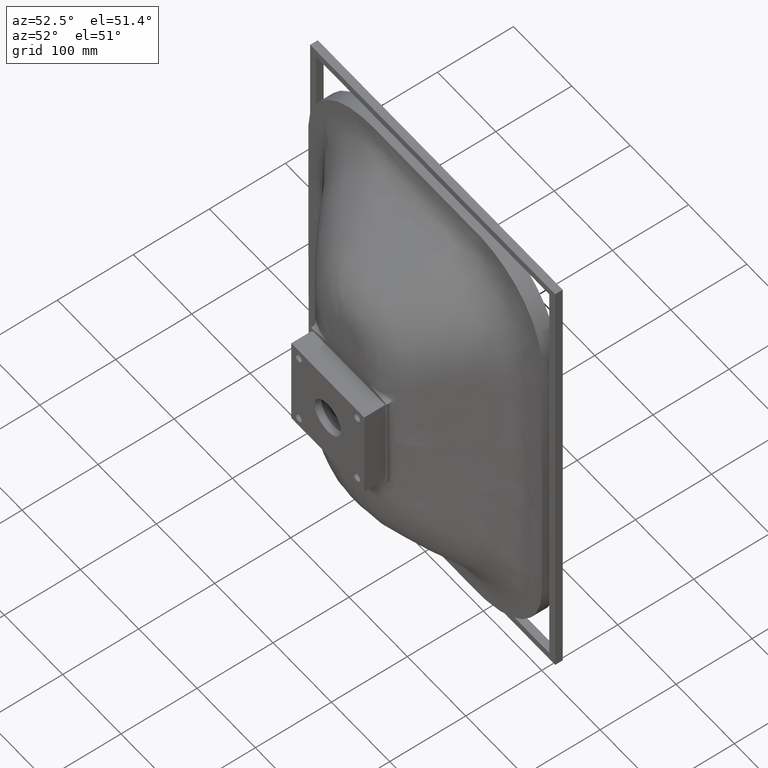
[diagram: clean part render]
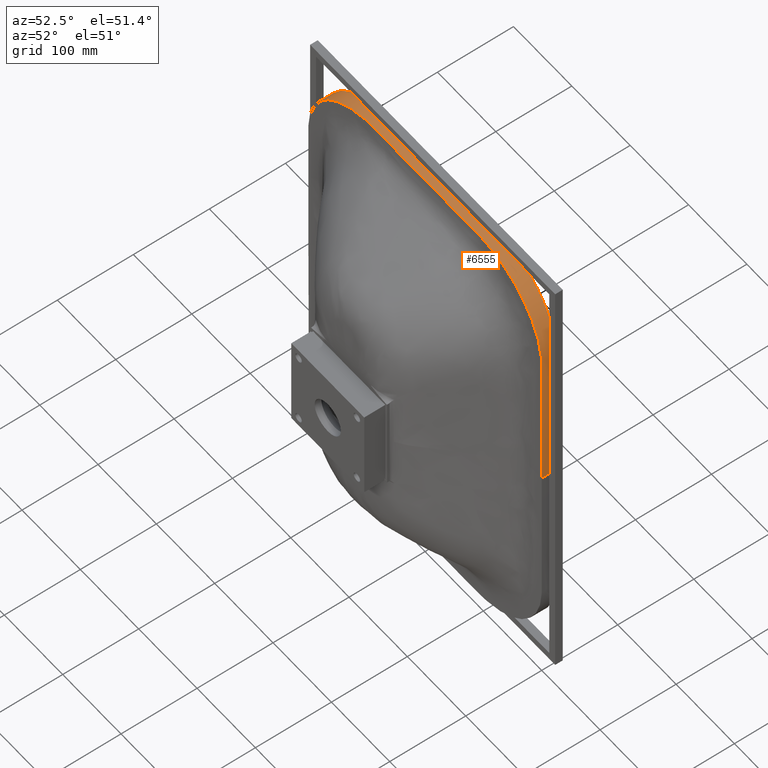
[diagram: same view with one face highlighted and labeled with its STEP entity id]
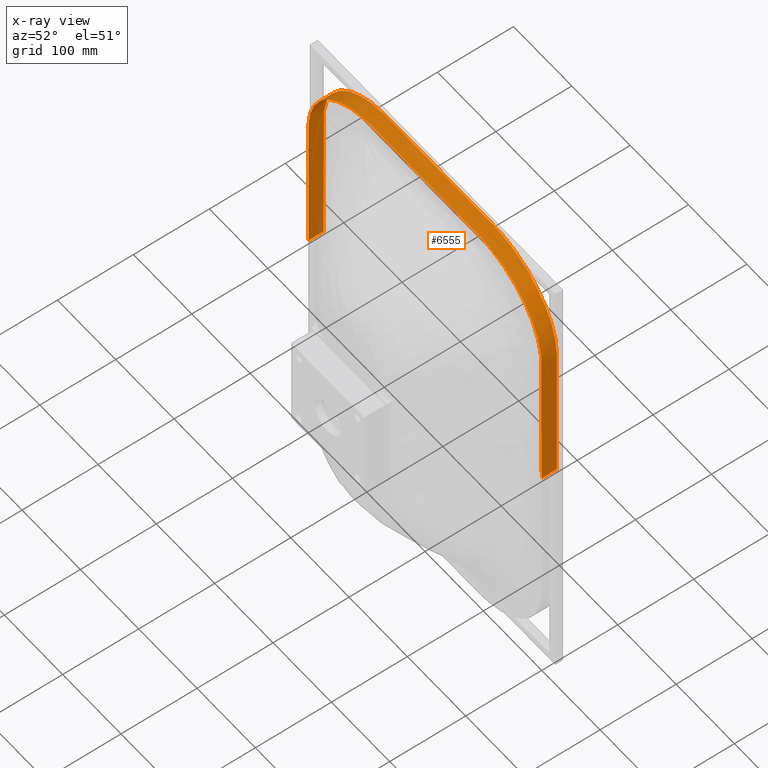
[diagram: x-ray of the same camera — body ghosted, the highlighted face saturated]
A machine part, auxiliary view. The second image highlights one B-rep face of the part: STEP entity #6555.
The next image is the same camera in x-ray: the body ghosted, the highlighted face saturated — about 2% of this face is hidden behind the body in this view.
In plain terms, the highlighted face is a freeform B-spline surface patch.
Its self-contained STEP definition (entity closure, byte-faithful):
#387 = CARTESIAN_POINT ( 'NONE',  ( 200.0000000000021300, 120.0000000000007400, 9.159339953157541500E-013 ) ) ;
#409 = CARTESIAN_POINT ( 'NONE',  ( 200.0000000000021900, 120.0000000000016300, 63.33333333333298000 ) ) ;
#423 = CARTESIAN_POINT ( 'NONE',  ( 200.0000000000015300, 120.0000000000022700, 126.6666666666670700 ) ) ;
#426 = CARTESIAN_POINT ( 'NONE',  ( 199.9999999999999700, 119.9999999999996600, 199.3423852784301000 ) ) ;
#442 = CARTESIAN_POINT ( 'NONE',  ( 198.8080864718468200, 119.9999999999999700, 208.5657858098214800 ) ) ;
#447 = CARTESIAN_POINT ( 'NONE',  ( 194.0399032443970100, 120.0000000000000300, 227.0779828008003000 ) ) ;
#465 = CARTESIAN_POINT ( 'NONE',  ( 186.6589759895216500, 120.0000000000000300, 245.1906514458040400 ) ) ;
#484 = CARTESIAN_POINT ( 'NONE',  ( 168.6923294650225400, 119.9999999999999600, 268.6923294650225700 ) ) ;
#488 = CARTESIAN_POINT ( 'NONE',  ( 147.3414267532379800, 120.0000000000000300, 285.0147497671384800 ) ) ;
#506 = CARTESIAN_POINT ( 'NONE',  ( 121.1660790566502900, 120.0000000000000300, 296.8106721460861200 ) ) ;
#524 = CARTESIAN_POINT ( 'NONE',  ( 102.0471619301131200, 120.0000000000000000, 300.0000000000000600 ) ) ;
#541 = CARTESIAN_POINT ( 'NONE',  ( 83.49218113899503600, 120.0000000000000000, 299.9999999999999400 ) ) ;
#545 = CARTESIAN_POINT ( 'NONE',  ( 76.98436227798986000, 120.0000000000000100, 300.0000000000000600 ) ) ;
#566 = CARTESIAN_POINT ( 'NONE',  ( 65.93767346658977100, 120.0000000000000300, 300.0000000000000600 ) ) ;
#586 = CARTESIAN_POINT ( 'NONE',  ( 59.12631834090001300, 119.9999999999999900, 300.0000000000000600 ) ) ;
#612 = CARTESIAN_POINT ( 'NONE',  ( 52.31496321521019200, 120.0000000000000000, 300.0000000000000600 ) ) ;
#637 = CARTESIAN_POINT ( 'NONE',  ( 38.92192736437854700, 119.9999999999999900, 300.0000000000000600 ) ) ;
#653 = CARTESIAN_POINT ( 'NONE',  ( 22.24110135107341400, 119.9999999999999600, 300.0000000000000600 ) ) ;
#674 = CARTESIAN_POINT ( 'NONE',  ( -6.808789643208967800E-014, 120.0000000000000000, 300.0000000000000600 ) ) ;
#709 = CARTESIAN_POINT ( 'NONE',  ( -22.24110135107354600, 120.0000000000000700, 300.0000000000001100 ) ) ;
#730 = CARTESIAN_POINT ( 'NONE',  ( -38.92192736437865400, 120.0000000000000400, 300.0000000000002300 ) ) ;
#751 = CARTESIAN_POINT ( 'NONE',  ( -52.31496321521045400, 120.0000000000000000, 300.0000000000001700 ) ) ;
#772 = CARTESIAN_POINT ( 'NONE',  ( -59.12631834090007000, 120.0000000000000100, 300.0000000000002300 ) ) ;
#794 = CARTESIAN_POINT ( 'NONE',  ( -65.93767346658972900, 120.0000000000000000, 300.0000000000000600 ) ) ;
#811 = CARTESIAN_POINT ( 'NONE',  ( -76.98436227798954700, 120.0000000000000300, 300.0000000000000600 ) ) ;
#831 = CARTESIAN_POINT ( 'NONE',  ( -83.49218113899480900, 119.9999999999999900, 300.0000000000000600 ) ) ;
#856 = CARTESIAN_POINT ( 'NONE',  ( -102.0471619301131900, 120.0000000000000300, 300.0000000000000600 ) ) ;
#859 = CARTESIAN_POINT ( 'NONE',  ( -121.1660790566503600, 119.9999999999999900, 296.8106721460860100 ) ) ;
#873 = CARTESIAN_POINT ( 'NONE',  ( -147.3414267532379500, 120.0000000000000000, 285.0147497671382600 ) ) ;
#892 = CARTESIAN_POINT ( 'NONE',  ( -168.6923294650226200, 120.0000000000000400, 268.6923294650226200 ) ) ;
#916 = CARTESIAN_POINT ( 'NONE',  ( -186.6589759895210800, 120.0000000000000000, 245.1906514458042100 ) ) ;
#919 = CARTESIAN_POINT ( 'NONE',  ( -194.0399032443967500, 119.9999999999999900, 227.0779828008007500 ) ) ;
#940 = CARTESIAN_POINT ( 'NONE',  ( -198.8080864718466500, 120.0000000000000000, 208.5657858098221600 ) ) ;
#954 = CARTESIAN_POINT ( 'NONE',  ( -200.0000000000000000, 119.9999999999999900, 199.3423852784306700 ) ) ;
#974 = CARTESIAN_POINT ( 'NONE',  ( -200.0000000000001100, 120.0000000000001000, 139.3333333333332000 ) ) ;
#978 = CARTESIAN_POINT ( 'NONE',  ( -199.9999999999998900, 120.0000000000000900, 85.50000000000001400 ) ) ;
#993 = CARTESIAN_POINT ( 'NONE',  ( -200.0000000000000000, 120.0000000000000400, 28.50000000000001100 ) ) ;
#1023 = CARTESIAN_POINT ( 'NONE',  ( -200.0000000000000000, 120.0000000000000100, 18.99999999999998900 ) ) ;
#1027 = CARTESIAN_POINT ( 'NONE',  ( -200.0000000000000000, 120.0000000000000000, 9.499999999999962700 ) ) ;
#1043 = CARTESIAN_POINT ( 'NONE',  ( -200.0000000000000600, 120.0000000000000000, 3.166666666666653600 ) ) ;
#1063 = CARTESIAN_POINT ( 'NONE',  ( -200.0000000000000600, 120.0000000000000000, -2.168404344971008900E-015 ) ) ;
#2496 = ORIENTED_EDGE ( 'NONE', *, *, #5617, .F. ) ;
#2860 = FACE_OUTER_BOUND ( 'NONE', #11616, .T. ) ;
#3867 = B_SPLINE_CURVE_WITH_KNOTS ( 'NONE', 3,
 ( #7453, #7399, #7395, #7376 ),
 .UNSPECIFIED., .F., .F.,
 ( 4, 4 ),
 ( 0.0000000000000000000, 1.000000000000000000 ),
 .UNSPECIFIED. ) ;
#3936 = VERTEX_POINT ( 'NONE', #18211 ) ;
#4032 = CARTESIAN_POINT ( 'NONE',  ( -200.0000000000000600, 120.0000000000000000, -2.168404344971008900E-015 ) ) ;
#4050 = CARTESIAN_POINT ( 'NONE',  ( -200.0000000000000600, 120.0000000000000000, 3.166666666666653600 ) ) ;
#4071 = CARTESIAN_POINT ( 'NONE',  ( -200.0000000000000000, 120.0000000000000000, 9.499999999999962700 ) ) ;
#4084 = CARTESIAN_POINT ( 'NONE',  ( -200.0000000000000000, 120.0000000000000100, 18.99999999999998900 ) ) ;
#4088 = CARTESIAN_POINT ( 'NONE',  ( -200.0000000000000000, 120.0000000000000400, 28.50000000000001100 ) ) ;
#4123 = CARTESIAN_POINT ( 'NONE',  ( -199.9999999999998900, 120.0000000000000900, 85.50000000000001400 ) ) ;
#4140 = CARTESIAN_POINT ( 'NONE',  ( -200.0000000000001100, 120.0000000000001000, 139.3333333333332000 ) ) ;
#4143 = CARTESIAN_POINT ( 'NONE',  ( -200.0000000000000000, 119.9999999999999900, 199.3423852784306700 ) ) ;
#4160 = CARTESIAN_POINT ( 'NONE',  ( -198.8080864718466500, 120.0000000000000000, 208.5657858098221600 ) ) ;
#4182 = CARTESIAN_POINT ( 'NONE',  ( -194.0399032443967500, 119.9999999999999900, 227.0779828008007500 ) ) ;
#4205 = CARTESIAN_POINT ( 'NONE',  ( -186.6589759895210800, 120.0000000000000000, 245.1906514458042100 ) ) ;
#4209 = CARTESIAN_POINT ( 'NONE',  ( -168.6923294650226200, 120.0000000000000400, 268.6923294650226200 ) ) ;
#4223 = CARTESIAN_POINT ( 'NONE',  ( -147.3414267532379500, 120.0000000000000000, 285.0147497671382600 ) ) ;
#4245 = CARTESIAN_POINT ( 'NONE',  ( -121.1660790566503600, 119.9999999999999900, 296.8106721460860100 ) ) ;
#4265 = CARTESIAN_POINT ( 'NONE',  ( -102.0471619301131900, 120.0000000000000300, 300.0000000000000600 ) ) ;
#4269 = CARTESIAN_POINT ( 'NONE',  ( -83.49218113899480900, 119.9999999999999900, 300.0000000000000600 ) ) ;
#4284 = CARTESIAN_POINT ( 'NONE',  ( -76.98436227798954700, 120.0000000000000300, 300.0000000000000600 ) ) ;
#4308 = CARTESIAN_POINT ( 'NONE',  ( -65.93767346658972900, 120.0000000000000000, 300.0000000000000600 ) ) ;
#4326 = CARTESIAN_POINT ( 'NONE',  ( -59.12631834090007000, 120.0000000000000100, 300.0000000000002300 ) ) ;
#4332 = CARTESIAN_POINT ( 'NONE',  ( -52.31496321521045400, 120.0000000000000000, 300.0000000000001700 ) ) ;
#4348 = CARTESIAN_POINT ( 'NONE',  ( -38.92192736437865400, 120.0000000000000400, 300.0000000000002300 ) ) ;
#4350 = CARTESIAN_POINT ( 'NONE',  ( -22.24110135107354600, 120.0000000000000700, 300.0000000000001100 ) ) ;
#4368 = CARTESIAN_POINT ( 'NONE',  ( -6.808789643208967800E-014, 120.0000000000000000, 300.0000000000000600 ) ) ;
#4388 = CARTESIAN_POINT ( 'NONE',  ( 22.24110135107341400, 119.9999999999999600, 300.0000000000000600 ) ) ;
#4391 = CARTESIAN_POINT ( 'NONE',  ( 38.92192736437854700, 119.9999999999999900, 300.0000000000000600 ) ) ;
#4405 = CARTESIAN_POINT ( 'NONE',  ( 52.31496321521019200, 120.0000000000000000, 300.0000000000000600 ) ) ;
#4409 = CARTESIAN_POINT ( 'NONE',  ( 59.12631834090001300, 119.9999999999999900, 300.0000000000000600 ) ) ;
#4426 = CARTESIAN_POINT ( 'NONE',  ( 65.93767346658977100, 120.0000000000000300, 300.0000000000000600 ) ) ;
#4446 = CARTESIAN_POINT ( 'NONE',  ( 76.98436227798986000, 120.0000000000000100, 300.0000000000000600 ) ) ;
#4450 = CARTESIAN_POINT ( 'NONE',  ( 83.49218113899503600, 120.0000000000000000, 299.9999999999999400 ) ) ;
#4468 = CARTESIAN_POINT ( 'NONE',  ( 102.0471619301131200, 120.0000000000000000, 300.0000000000000600 ) ) ;
#4484 = CARTESIAN_POINT ( 'NONE',  ( 121.1660790566502900, 120.0000000000000300, 296.8106721460861200 ) ) ;
#4504 = CARTESIAN_POINT ( 'NONE',  ( 147.3414267532379800, 120.0000000000000300, 285.0147497671384800 ) ) ;
#4506 = CARTESIAN_POINT ( 'NONE',  ( 168.6923294650225400, 119.9999999999999600, 268.6923294650225700 ) ) ;
#4522 = CARTESIAN_POINT ( 'NONE',  ( 186.6589759895216500, 120.0000000000000300, 245.1906514458040400 ) ) ;
#4536 = CARTESIAN_POINT ( 'NONE',  ( 194.0399032443970100, 120.0000000000000300, 227.0779828008003000 ) ) ;
#4557 = CARTESIAN_POINT ( 'NONE',  ( 198.8080864718468200, 119.9999999999999700, 208.5657858098214800 ) ) ;
#4560 = CARTESIAN_POINT ( 'NONE',  ( 199.9999999999999700, 119.9999999999996600, 199.3423852784301000 ) ) ;
#4582 = CARTESIAN_POINT ( 'NONE',  ( 200.0000000000015300, 120.0000000000022700, 126.6666666666678700 ) ) ;
#4599 = CARTESIAN_POINT ( 'NONE',  ( 200.0000000000028400, 120.0000000000009900, 1.582067810090848100E-012 ) ) ;
#4622 = CARTESIAN_POINT ( 'NONE',  ( 200.0000000000014500, 119.9999999999987200, -126.6666666666664300 ) ) ;
#4647 = CARTESIAN_POINT ( 'NONE',  ( 199.9999999999998900, 120.0000000000001700, -199.3423852784316400 ) ) ;
#4661 = CARTESIAN_POINT ( 'NONE',  ( 198.8080864718465100, 120.0000000000000100, -208.5657858098239800 ) ) ;
#4678 = CARTESIAN_POINT ( 'NONE',  ( 194.0399032443960400, 120.0000000000000000, -227.0779828008025200 ) ) ;
#4697 = CARTESIAN_POINT ( 'NONE',  ( 186.6589759895207100, 120.0000000000000300, -245.1906514458049700 ) ) ;
#4709 = CARTESIAN_POINT ( 'NONE',  ( 168.6923294650226200, 120.0000000000000000, -268.6923294650224500 ) ) ;
#4733 = CARTESIAN_POINT ( 'NONE',  ( 147.3414267532380100, 120.0000000000000000, -285.0147497671382600 ) ) ;
#4753 = CARTESIAN_POINT ( 'NONE',  ( 121.1660790566504200, 120.0000000000000100, -296.8106721460858400 ) ) ;
#4772 = CARTESIAN_POINT ( 'NONE',  ( 102.0471619301133300, 120.0000000000000000, -300.0000000000002300 ) ) ;
#4796 = CARTESIAN_POINT ( 'NONE',  ( 83.49218113899425500, 120.0000000000000000, -300.0000000000000000 ) ) ;
#4817 = CARTESIAN_POINT ( 'NONE',  ( 76.98436227798839600, 120.0000000000000000, -299.9999999999999400 ) ) ;
#4821 = CARTESIAN_POINT ( 'NONE',  ( 65.93767346658849200, 119.9999999999999700, -299.9999999999999400 ) ) ;
#4838 = CARTESIAN_POINT ( 'NONE',  ( 59.12631834089928900, 119.9999999999999900, -299.9999999999999400 ) ) ;
#4863 = CARTESIAN_POINT ( 'NONE',  ( 52.31496321521012800, 119.9999999999999700, -299.9999999999999400 ) ) ;
#4869 = CARTESIAN_POINT ( 'NONE',  ( 38.92192736437832700, 119.9999999999999700, -299.9999999999999400 ) ) ;
#4884 = CARTESIAN_POINT ( 'NONE',  ( 22.24110135107326500, 119.9999999999999300, -299.9999999999999400 ) ) ;
#4906 = CARTESIAN_POINT ( 'NONE',  ( -1.700029006457271000E-013, 120.0000000000000000, -300.0000000000000600 ) ) ;
#4926 = CARTESIAN_POINT ( 'NONE',  ( -22.24110135107363800, 120.0000000000000600, -300.0000000000000600 ) ) ;
#4932 = CARTESIAN_POINT ( 'NONE',  ( -38.92192736437874600, 120.0000000000000000, -300.0000000000000600 ) ) ;
#4950 = CARTESIAN_POINT ( 'NONE',  ( -52.31496321521039800, 120.0000000000000000, -300.0000000000000600 ) ) ;
#4991 = CARTESIAN_POINT ( 'NONE',  ( -59.12631834090034700, 119.9999999999999400, -300.0000000000000600 ) ) ;
#4996 = CARTESIAN_POINT ( 'NONE',  ( -65.93767346659031100, 120.0000000000000300, -300.0000000000000000 ) ) ;
#5010 = CARTESIAN_POINT ( 'NONE',  ( -76.98436227799030000, 119.9999999999999700, -299.9999999999998300 ) ) ;
#5043 = CARTESIAN_POINT ( 'NONE',  ( -83.49218113899517800, 119.9999999999999900, -300.0000000000000000 ) ) ;
#5047 = CARTESIAN_POINT ( 'NONE',  ( -102.0471619301131500, 120.0000000000000400, -300.0000000000001100 ) ) ;
#5064 = CARTESIAN_POINT ( 'NONE',  ( -121.1660790566503000, 119.9999999999999700, -296.8106721460860100 ) ) ;
#5083 = CARTESIAN_POINT ( 'NONE',  ( -147.3414267532379300, 120.0000000000000000, -285.0147497671384300 ) ) ;
#5100 = CARTESIAN_POINT ( 'NONE',  ( -200.0000000000000600, 99.99999999999997200, 3.166666666666652300 ) ) ;
#5104 = CARTESIAN_POINT ( 'NONE',  ( -186.6589759895212000, 120.0000000000000600, -245.1906514458042100 ) ) ;
#5120 = CARTESIAN_POINT ( 'NONE',  ( -194.0399032443967000, 119.9999999999999400, -227.0779828008007500 ) ) ;
#5137 = CARTESIAN_POINT ( 'NONE',  ( -198.8080864718467400, 120.0000000000000300, -208.5657858098221000 ) ) ;
#5160 = CARTESIAN_POINT ( 'NONE',  ( -200.0000000000001100, 119.9999999999999900, -199.3423852784306400 ) ) ;
#5174 = CARTESIAN_POINT ( 'NONE',  ( -200.0000000000001400, 120.0000000000000900, -139.3333333333331400 ) ) ;
#5177 = CARTESIAN_POINT ( 'NONE',  ( -200.0000000000000300, 120.0000000000000700, -28.49999999999990100 ) ) ;
#5215 = CARTESIAN_POINT ( 'NONE',  ( -200.0000000000000300, 120.0000000000000400, -18.99999999999993600 ) ) ;
#5231 = CARTESIAN_POINT ( 'NONE',  ( -200.0000000000000600, 120.0000000000001400, -85.49999999999987200 ) ) ;
#5246 = CARTESIAN_POINT ( 'NONE',  ( -200.0000000000000600, 120.0000000000000400, -9.499999999999969800 ) ) ;
#5269 = CARTESIAN_POINT ( 'NONE',  ( -200.0000000000000600, 120.0000000000000000, -3.166666666666658100 ) ) ;
#5274 = CARTESIAN_POINT ( 'NONE',  ( -200.0000000000000600, 120.0000000000000000, -2.168404344971008900E-015 ) ) ;
#5287 = CARTESIAN_POINT ( 'NONE',  ( -200.0000000000000300, 113.3333333333333000, 9.499999999999966200 ) ) ;
#5290 = CARTESIAN_POINT ( 'NONE',  ( -200.0000000000000600, 113.3333333333333000, 2.385244779468109800E-015 ) ) ;
#5304 = CARTESIAN_POINT ( 'NONE',  ( -200.0000000000000300, 113.3333333333333000, 3.166666666666658100 ) ) ;
#5327 = CARTESIAN_POINT ( 'NONE',  ( -199.9999999999998600, 113.3333333333333300, 85.50000000000005700 ) ) ;
#5339 = CARTESIAN_POINT ( 'NONE',  ( -200.0000000000000000, 113.3333333333333000, 18.99999999999999600 ) ) ;
#5343 = CARTESIAN_POINT ( 'NONE',  ( -200.0000000000000300, 113.3333333333333300, 199.3423852784306100 ) ) ;
#5361 = CARTESIAN_POINT ( 'NONE',  ( -199.9999999999999700, 113.3333333333333300, 28.50000000000002500 ) ) ;
#5383 = CARTESIAN_POINT ( 'NONE',  ( -200.0000000000000000, 113.3333333333333300, 139.3333333333333100 ) ) ;
#5398 = CARTESIAN_POINT ( 'NONE',  ( -198.8080864718466800, 113.3333333333333100, 208.5657858098220700 ) ) ;
#5403 = CARTESIAN_POINT ( 'NONE',  ( -186.6589759895212000, 113.3333333333333600, 245.1906514458041800 ) ) ;
#5421 = CARTESIAN_POINT ( 'NONE',  ( -121.1660790566503600, 113.3333333333333100, 296.8106721460860600 ) ) ;
#5446 = CARTESIAN_POINT ( 'NONE',  ( -168.6923294650226000, 113.3333333333333600, 268.6923294650225700 ) ) ;
#5466 = CARTESIAN_POINT ( 'NONE',  ( -194.0399032443967800, 113.3333333333333100, 227.0779828008007800 ) ) ;
#5471 = CARTESIAN_POINT ( 'NONE',  ( -102.0471619301132100, 113.3333333333333400, 300.0000000000002300 ) ) ;
#5486 = CARTESIAN_POINT ( 'NONE',  ( -147.3414267532380100, 113.3333333333333300, 285.0147497671383100 ) ) ;
#5513 = CARTESIAN_POINT ( 'NONE',  ( -83.49218113899483700, 113.3333333333333300, 300.0000000000001100 ) ) ;
#5529 = CARTESIAN_POINT ( 'NONE',  ( 102.0471619301131800, 99.99999999999994300, 300.0000000000000600 ) ) ;
#5534 = CARTESIAN_POINT ( 'NONE',  ( -38.92192736437868200, 99.99999999999994300, 300.0000000000002300 ) ) ;
#5577 = CARTESIAN_POINT ( 'NONE',  ( -52.31496321521046200, 113.3333333333333300, 300.0000000000002300 ) ) ;
#5599 = CARTESIAN_POINT ( 'NONE',  ( -65.93767346658972900, 113.3333333333333400, 300.0000000000001100 ) ) ;
#5604 = CARTESIAN_POINT ( 'NONE',  ( -7.560503149465584700E-014, 113.3333333333333400, 300.0000000000000600 ) ) ;
#5617 = EDGE_CURVE ( 'NONE', #11774, #8899, #12823, .T. ) ;
#5623 = CARTESIAN_POINT ( 'NONE',  ( -38.92192736437866100, 113.3333333333333700, 300.0000000000002800 ) ) ;
#5649 = CARTESIAN_POINT ( 'NONE',  ( -22.24110135107355300, 113.3333333333334000, 300.0000000000001100 ) ) ;
#5668 = CARTESIAN_POINT ( 'NONE',  ( 38.92192736437854700, 113.3333333333333300, 300.0000000000000600 ) ) ;
#5673 = CARTESIAN_POINT ( 'NONE',  ( 52.31496321521019200, 113.3333333333333400, 300.0000000000000600 ) ) ;
#5686 = CARTESIAN_POINT ( 'NONE',  ( 22.24110135107341400, 113.3333333333333100, 300.0000000000000600 ) ) ;
#5709 = CARTESIAN_POINT ( 'NONE',  ( 59.12631834090001300, 113.3333333333333300, 300.0000000000001100 ) ) ;
#5729 = CARTESIAN_POINT ( 'NONE',  ( 65.93767346658977100, 113.3333333333333600, 300.0000000000001100 ) ) ;
#5733 = CARTESIAN_POINT ( 'NONE',  ( 102.0471619301131500, 113.3333333333333100, 300.0000000000001100 ) ) ;
#5750 = CARTESIAN_POINT ( 'NONE',  ( 168.6923294650225400, 113.3333333333332900, 268.6923294650226200 ) ) ;
#5756 = CARTESIAN_POINT ( 'NONE',  ( 76.98436227798986000, 113.3333333333333600, 300.0000000000001100 ) ) ;
#5776 = CARTESIAN_POINT ( 'NONE',  ( 83.49218113899503600, 113.3333333333333400, 300.0000000000000000 ) ) ;
#5800 = CARTESIAN_POINT ( 'NONE',  ( 147.3414267532379800, 113.3333333333333400, 285.0147497671385400 ) ) ;
#5805 = CARTESIAN_POINT ( 'NONE',  ( 121.1660790566502900, 113.3333333333333600, 296.8106721460861800 ) ) ;
#5822 = CARTESIAN_POINT ( 'NONE',  ( 198.8080864718468200, 113.3333333333332900, 208.5657858098215300 ) ) ;
#5826 = CARTESIAN_POINT ( 'NONE',  ( 194.0399032443970100, 113.3333333333333000, 227.0779828008003600 ) ) ;
#5846 = CARTESIAN_POINT ( 'NONE',  ( 186.6589759895216500, 113.3333333333333600, 245.1906514458040600 ) ) ;
#5869 = CARTESIAN_POINT ( 'NONE',  ( 199.9999999999999400, 113.3333333333330400, 199.3423852784301300 ) ) ;
#5873 = CARTESIAN_POINT ( 'NONE',  ( 200.0000000000015300, 113.3333333333350600, 126.6666666666678900 ) ) ;
#5913 = CARTESIAN_POINT ( 'NONE',  ( 200.0000000000014500, 113.3333333333326700, -126.6666666666664300 ) ) ;
#5933 = CARTESIAN_POINT ( 'NONE',  ( 200.0000000000028100, 113.3333333333344500, 1.593632633264026900E-012 ) ) ;
#5936 = CARTESIAN_POINT ( 'NONE',  ( 199.9999999999998900, 113.3333333333333900, -199.3423852784316400 ) ) ;
#5955 = CARTESIAN_POINT ( 'NONE',  ( 194.0399032443960400, 113.3333333333333000, -227.0779828008025200 ) ) ;
#5961 = CARTESIAN_POINT ( 'NONE',  ( 198.8080864718465100, 113.3333333333333100, -208.5657858098239800 ) ) ;
#5980 = CARTESIAN_POINT ( 'NONE',  ( 186.6589759895207100, 113.3333333333333600, -245.1906514458049700 ) ) ;
#6004 = CARTESIAN_POINT ( 'NONE',  ( 121.1660790566504200, 113.3333333333333000, -296.8106721460858400 ) ) ;
#6008 = CARTESIAN_POINT ( 'NONE',  ( 147.3414267532380100, 113.3333333333333000, -285.0147497671382600 ) ) ;
#6030 = CARTESIAN_POINT ( 'NONE',  ( 59.12631834089928900, 113.3333333333332600, -299.9999999999999400 ) ) ;
#6046 = CARTESIAN_POINT ( 'NONE',  ( 168.6923294650226200, 113.3333333333332900, -268.6923294650224500 ) ) ;
#6066 = CARTESIAN_POINT ( 'NONE',  ( 76.98436227798839600, 113.3333333333332900, -299.9999999999999400 ) ) ;
#6089 = CARTESIAN_POINT ( 'NONE',  ( 102.0471619301133300, 113.3333333333333000, -300.0000000000002300 ) ) ;
#6123 = CARTESIAN_POINT ( 'NONE',  ( 65.93767346658849200, 113.3333333333332700, -299.9999999999999400 ) ) ;
#6145 = CARTESIAN_POINT ( 'NONE',  ( 52.31496321521012800, 113.3333333333332600, -299.9999999999999400 ) ) ;
#6199 = CARTESIAN_POINT ( 'NONE',  ( 83.49218113899425500, 113.3333333333332900, -300.0000000000000000 ) ) ;
#6220 = CARTESIAN_POINT ( 'NONE',  ( 38.92192736437832700, 113.3333333333332600, -299.9999999999999400 ) ) ;
#6242 = CARTESIAN_POINT ( 'NONE',  ( 22.24110135107326500, 113.3333333333332400, -299.9999999999999400 ) ) ;
#6260 = CARTESIAN_POINT ( 'NONE',  ( -1.700029006457271000E-013, 113.3333333333333100, -300.0000000000000600 ) ) ;
#6279 = CARTESIAN_POINT ( 'NONE',  ( -22.24110135107363500, 113.3333333333333600, -300.0000000000000600 ) ) ;
#6303 = CARTESIAN_POINT ( 'NONE',  ( -38.92192736437874600, 113.3333333333333300, -300.0000000000000600 ) ) ;
#6309 = CARTESIAN_POINT ( 'NONE',  ( -52.31496321521039800, 113.3333333333332900, -300.0000000000000600 ) ) ;
#6324 = CARTESIAN_POINT ( 'NONE',  ( -59.12631834090034700, 113.3333333333332400, -300.0000000000000600 ) ) ;
#6341 = CARTESIAN_POINT ( 'NONE',  ( -83.49218113899517800, 113.3333333333333000, -300.0000000000000000 ) ) ;
#6362 = CARTESIAN_POINT ( 'NONE',  ( -65.93767346659029700, 113.3333333333333100, -300.0000000000000000 ) ) ;
#6368 = CARTESIAN_POINT ( 'NONE',  ( -76.98436227799030000, 113.3333333333332700, -299.9999999999998300 ) ) ;
#6384 = CARTESIAN_POINT ( 'NONE',  ( -102.0471619301131500, 113.3333333333333000, -300.0000000000001100 ) ) ;
#6403 = CARTESIAN_POINT ( 'NONE',  ( -186.6589759895212000, 113.3333333333333100, -245.1906514458042100 ) ) ;
#6425 = CARTESIAN_POINT ( 'NONE',  ( -147.3414267532379300, 113.3333333333333000, -285.0147497671384300 ) ) ;
#6429 = CARTESIAN_POINT ( 'NONE',  ( -121.1660790566503000, 113.3333333333332700, -296.8106721460860100 ) ) ;
#6445 = CARTESIAN_POINT ( 'NONE',  ( -168.6923294650226000, 113.3333333333332600, -268.6923294650223400 ) ) ;
#6476 = CARTESIAN_POINT ( 'NONE',  ( -194.0399032443966700, 113.3333333333332600, -227.0779828008007500 ) ) ;
#6479 = CARTESIAN_POINT ( 'NONE',  ( -198.8080864718467400, 113.3333333333333300, -208.5657858098221000 ) ) ;
#6492 = CARTESIAN_POINT ( 'NONE',  ( -200.0000000000001100, 113.3333333333333000, -199.3423852784306400 ) ) ;
#6507 = CARTESIAN_POINT ( 'NONE',  ( -200.0000000000000900, 113.3333333333333600, -28.49999999999989300 ) ) ;
#6527 = CARTESIAN_POINT ( 'NONE',  ( -200.0000000000001700, 113.3333333333334000, -85.49999999999985800 ) ) ;
#6530 = CARTESIAN_POINT ( 'NONE',  ( -200.0000000000001400, 113.3333333333333300, -139.3333333333331400 ) ) ;
#6545 = CARTESIAN_POINT ( 'NONE',  ( -200.0000000000000900, 113.3333333333333300, -9.499999999999964500 ) ) ;
#6549 = CARTESIAN_POINT ( 'NONE',  ( -200.0000000000000900, 113.3333333333333300, -18.99999999999992900 ) ) ;
#6555 = ADVANCED_FACE ( 'NONE', ( #2860 ), #7200, .T. ) ;
#6563 = CARTESIAN_POINT ( 'NONE',  ( -200.0000000000000600, 106.6666666666666400, -6.722053469410127500E-015 ) ) ;
#6582 = CARTESIAN_POINT ( 'NONE',  ( -200.0000000000000600, 113.3333333333333000, 2.385244779468109800E-015 ) ) ;
#6597 = CARTESIAN_POINT ( 'NONE',  ( -200.0000000000000900, 113.3333333333333000, -3.166666666666652800 ) ) ;
#6600 = CARTESIAN_POINT ( 'NONE',  ( -200.0000000000000600, 106.6666666666666600, 3.166666666666648300 ) ) ;
#6617 = CARTESIAN_POINT ( 'NONE',  ( -200.0000000000000000, 106.6666666666666600, 18.99999999999999300 ) ) ;
#6631 = CARTESIAN_POINT ( 'NONE',  ( -200.0000000000000300, 106.6666666666666400, 9.499999999999957400 ) ) ;
#6635 = CARTESIAN_POINT ( 'NONE',  ( -199.9999999999999700, 106.6666666666666600, 28.50000000000002100 ) ) ;
#6651 = CARTESIAN_POINT ( 'NONE',  ( -199.9999999999998300, 106.6666666666666600, 85.50000000000009900 ) ) ;
#6685 = CARTESIAN_POINT ( 'NONE',  ( -200.0000000000000600, 106.6666666666666600, 199.3423852784305600 ) ) ;
#6689 = CARTESIAN_POINT ( 'NONE',  ( -186.6589759895213100, 106.6666666666667000, 245.1906514458041500 ) ) ;
#6700 = CARTESIAN_POINT ( 'NONE',  ( -198.8080864718466800, 106.6666666666666400, 208.5657858098219600 ) ) ;
#6703 = CARTESIAN_POINT ( 'NONE',  ( -168.6923294650226200, 106.6666666666666700, 268.6923294650225100 ) ) ;
#6718 = CARTESIAN_POINT ( 'NONE',  ( -121.1660790566504000, 106.6666666666666400, 296.8106721460860600 ) ) ;
#6743 = CARTESIAN_POINT ( 'NONE',  ( -194.0399032443968400, 106.6666666666666300, 227.0779828008008100 ) ) ;
#6758 = CARTESIAN_POINT ( 'NONE',  ( -76.98436227798960400, 106.6666666666666600, 300.0000000000001100 ) ) ;
#6761 = CARTESIAN_POINT ( 'NONE',  ( -147.3414267532380700, 106.6666666666666600, 285.0147497671383100 ) ) ;
#6775 = CARTESIAN_POINT ( 'NONE',  ( -83.49218113899489400, 106.6666666666666300, 300.0000000000000000 ) ) ;
#6796 = CARTESIAN_POINT ( 'NONE',  ( -65.93767346658974300, 106.6666666666666400, 300.0000000000000000 ) ) ;
#6811 = CARTESIAN_POINT ( 'NONE',  ( -102.0471619301132600, 106.6666666666666400, 300.0000000000002800 ) ) ;
#6815 = CARTESIAN_POINT ( 'NONE',  ( -59.12631834090012700, 106.6666666666666700, 300.0000000000001700 ) ) ;
#6833 = CARTESIAN_POINT ( 'NONE',  ( 38.92192736437854700, 106.6666666666666100, 300.0000000000000600 ) ) ;
#6859 = CARTESIAN_POINT ( 'NONE',  ( -52.31496321521048300, 106.6666666666666600, 300.0000000000001100 ) ) ;
#6875 = CARTESIAN_POINT ( 'NONE',  ( -22.24110135107356700, 106.6666666666666700, 300.0000000000001100 ) ) ;
#6878 = CARTESIAN_POINT ( 'NONE',  ( -38.92192736437867500, 106.6666666666666400, 300.0000000000001700 ) ) ;
#6897 = CARTESIAN_POINT ( 'NONE',  ( -9.179578393710605000E-014, 106.6666666666666400, 300.0000000000000600 ) ) ;
#6919 = CARTESIAN_POINT ( 'NONE',  ( 22.24110135107340000, 106.6666666666666000, 300.0000000000000600 ) ) ;
#6938 = CARTESIAN_POINT ( 'NONE',  ( 52.31496321521019200, 106.6666666666666400, 300.0000000000000600 ) ) ;
#6942 = CARTESIAN_POINT ( 'NONE',  ( 76.98436227798986000, 106.6666666666666400, 300.0000000000000000 ) ) ;
#6958 = CARTESIAN_POINT ( 'NONE',  ( 65.93767346658977100, 106.6666666666666100, 300.0000000000000000 ) ) ;
#6983 = CARTESIAN_POINT ( 'NONE',  ( 83.49218113899503600, 106.6666666666666400, 299.9999999999998900 ) ) ;
#7002 = CARTESIAN_POINT ( 'NONE',  ( 59.12631834090001300, 106.6666666666666300, 300.0000000000000000 ) ) ;
#7007 = CARTESIAN_POINT ( 'NONE',  ( 121.1660790566503000, 106.6666666666666400, 296.8106721460860600 ) ) ;
#7027 = CARTESIAN_POINT ( 'NONE',  ( 147.3414267532379800, 106.6666666666666400, 285.0147497671384300 ) ) ;
#7054 = CARTESIAN_POINT ( 'NONE',  ( 102.0471619301131600, 106.6666666666665900, 300.0000000000000000 ) ) ;
#7070 = CARTESIAN_POINT ( 'NONE',  ( 168.6923294650225400, 106.6666666666666300, 268.6923294650225100 ) ) ;
#7075 = CARTESIAN_POINT ( 'NONE',  ( 186.6589759895216500, 106.6666666666666900, 245.1906514458040100 ) ) ;
#7089 = CARTESIAN_POINT ( 'NONE',  ( 200.0000000000014500, 106.6666666666666700, -126.6666666666664300 ) ) ;
#7109 = CARTESIAN_POINT ( 'NONE',  ( 198.8080864718468200, 106.6666666666666400, 208.5657858098214500 ) ) ;
#7127 = CARTESIAN_POINT ( 'NONE',  ( 200.0000000000015300, 106.6666666666678800, 126.6666666666678400 ) ) ;
#7132 = CARTESIAN_POINT ( 'NONE',  ( 199.9999999999998900, 106.6666666666665900, -199.3423852784316400 ) ) ;
#7150 = CARTESIAN_POINT ( 'NONE',  ( 194.0399032443970100, 106.6666666666666100, 227.0779828008002400 ) ) ;
#7153 = CARTESIAN_POINT ( 'NONE',  ( 200.0000000000028700, 106.6666666666679400, 1.570502986917669600E-012 ) ) ;
#7173 = CARTESIAN_POINT ( 'NONE',  ( 200.0000000000000000, 106.6666666666664700, 199.3423852784300700 ) ) ;
#7192 = CARTESIAN_POINT ( 'NONE',  ( 194.0399032443960400, 106.6666666666665900, -227.0779828008025200 ) ) ;
#7200 = B_SPLINE_SURFACE_WITH_KNOTS ( 'NONE', 3, 3, ( 
 ( #10112, #10073, #7843, #16839, #11080, #9975, #8006, #15304, #10759, #11387, #9019, #8617, #8737, #8667, #8622, #11379, #8641, #10135, #8733, #8373, #8414, #11700, #9369, #9515, #8468, #15269, #8569, #8530, #9458, #10322, #8461, #11648, #10525, #8277, #8599, #8009, #8760, #10728, #9581, #11249, #7762, #8593, #10298, #11585, #8692, #9402, #8709, #10975, #5529, #15007, #8847, #7967, #11000, #15245, #15126, #10091, #9330, #7902, #5534, #7878, #11444, #9622, #8524, #9534, #7414, #8304, #15209, #15151, #15044, #15026, #15086, #7575, #8256, #7784, #9605, #8831, #9127, #5100, #7970 ),
 ( #8347, #9493, #8328, #8077, #10370, #7534, #7281, #8238, #7317, #10066, #10190, #7314, #8261, #7472, #11654, #10352, #9352, #11563, #9185, #9278, #9316, #7332, #7337, #8869, #11015, #8395, #8214, #10945, #11497, #7398, #11360, #7496, #9299, #9241, #7218, #7192, #7256, #7132, #7089, #7153, #7127, #7173, #7109, #7150, #7075, #7070, #7027, #7007, #7054, #6983, #6942, #6958, #7002, #6938, #6833, #6919, #6897, #6875, #6878, #6859, #6815, #6796, #6758, #6775, #6811, #6718, #6761, #6703, #6689, #6743, #6700, #6685, #11474, #6651, #6635, #6617, #6631, #6600, #6563 ),
 ( #6582, #6597, #6545, #6549, #6507, #6527, #6530, #6492, #6479, #6476, #6403, #6445, #6425, #6429, #6384, #6341, #6368, #6362, #6324, #6309, #6303, #6279, #6260, #6242, #6220, #6145, #6030, #6123, #6066, #6199, #6089, #6004, #6008, #6046, #5980, #5955, #5961, #5936, #5913, #5933, #5873, #5869, #5822, #5826, #5846, #5750, #5800, #5805, #5733, #5776, #5756, #5729, #5709, #5673, #5668, #5686, #5604, #5649, #5623, #5577, #18155, #5599, #15362, #5513, #5471, #5421, #5486, #5446, #5403, #5466, #5398, #5343, #5383, #5327, #5361, #5339, #5287, #5304, #5290 ),
 ( #5274, #5269, #5246, #5215, #5177, #5231, #5174, #5160, #5137, #5120, #5104, #7709, #5083, #5064, #5047, #5043, #5010, #4996, #4991, #4950, #4932, #4926, #4906, #4884, #4869, #4863, #4838, #4821, #4817, #4796, #4772, #4753, #4733, #4709, #4697, #4678, #4661, #4647, #4622, #4599, #4582, #4560, #4557, #4536, #4522, #4506, #4504, #4484, #4468, #4450, #4446, #4426, #4409, #4405, #4391, #4388, #4368, #4350, #4348, #4332, #4326, #4308, #4284, #4269, #4265, #4245, #4223, #4209, #4205, #4182, #4160, #4143, #4140, #4123, #4088, #4084, #4071, #4050, #4032 ) ),
 .UNSPECIFIED., .F., .T., .F.,
 ( 4, 4 ),
 ( 4, 1, 1, 1, 1, 2, 2, 1, 1, 1, 1, 2, 2, 1, 2, 1, 1, 1, 2, 1, 2, 2, 1, 1, 1, 1, 2, 2, 1, 2, 2, 1, 1, 1, 1, 2, 2, 1, 2, 1, 1, 1, 2, 1, 2, 2, 1, 1, 1, 1, 2, 2, 1, 1, 1, 1, 4 ),
 ( 0.0000000000000000000, 1.000000000000000000 ),
 ( 0.0000000000000000000, 0.005219345127828845000, 0.01043869025565769000, 0.01565803538348653500, 0.02087738051131538000, 0.1043869025565771800, 0.1197851551098224900, 0.1364424591954515000, 0.1524702375148886400, 0.1684980158343258300, 0.1806972684971681600, 0.2005535724732001000, 0.2112798522621407400, 0.2187608823973333800, 0.2225064248481982400, 0.2408354749493993000, 0.2500000000000000000, 0.2591645250506003900, 0.2774935751518014000, 0.2812391176026666800, 0.2887201477378576500, 0.2994464275267999000, 0.3193027315028319500, 0.3315019841656742200, 0.3475297624851113600, 0.3635575408045485500, 0.3802148448901759300, 0.3956130974434228200, 0.5000000000000000000, 0.6043869025565775700, 0.6197851551098223500, 0.6364424591954516200, 0.6524702375148887500, 0.6684980158343258900, 0.6806972684971683800, 0.7005535724732001600, 0.7112798522621411900, 0.7187608823973336000, 0.7225064248481983800, 0.7408354749493995000, 0.7500000000000000000, 0.7591645250506005000, 0.7774935751518016200, 0.7812391176026667300, 0.7887201477378585900, 0.7994464275267998400, 0.8193027315028319500, 0.8315019841656741100, 0.8475297624851112500, 0.8635575408045483800, 0.8802148448901774300, 0.8956130974434226600, 0.9791226194886845100, 0.9843419646165133500, 0.9895613097443423100, 0.9947806548721711600, 1.000000000000000000 ),
 .UNSPECIFIED. ) ;
#7218 = CARTESIAN_POINT ( 'NONE',  ( 186.6589759895207100, 106.6666666666666900, -245.1906514458049700 ) ) ;
#7256 = CARTESIAN_POINT ( 'NONE',  ( 198.8080864718465100, 106.6666666666666100, -208.5657858098239800 ) ) ;
#7281 = CARTESIAN_POINT ( 'NONE',  ( -200.0000000000001400, 106.6666666666665700, -139.3333333333331400 ) ) ;
#7314 = CARTESIAN_POINT ( 'NONE',  ( -168.6923294650226000, 106.6666666666665900, -268.6923294650223400 ) ) ;
#7317 = CARTESIAN_POINT ( 'NONE',  ( -198.8080864718467400, 106.6666666666666300, -208.5657858098221000 ) ) ;
#7332 = CARTESIAN_POINT ( 'NONE',  ( -22.24110135107364200, 106.6666666666666000, -300.0000000000000600 ) ) ;
#7337 = CARTESIAN_POINT ( 'NONE',  ( -1.700029006457271000E-013, 106.6666666666665700, -300.0000000000000600 ) ) ;
#7376 = CARTESIAN_POINT ( 'NONE',  ( 200.0000000000021300, 120.0000000000007400, 9.159339953157541500E-013 ) ) ;
#7395 = CARTESIAN_POINT ( 'NONE',  ( 200.0000000000021300, 113.3333333333341700, 9.228728892196613700E-013 ) ) ;
#7398 = CARTESIAN_POINT ( 'NONE',  ( 83.49218113899425500, 106.6666666666665900, -300.0000000000000000 ) ) ;
#7399 = CARTESIAN_POINT ( 'NONE',  ( 200.0000000000021600, 106.6666666666676100, 9.089951014118469200E-013 ) ) ;
#7414 = CARTESIAN_POINT ( 'NONE',  ( -102.0471619301132800, 99.99999999999997200, 300.0000000000004500 ) ) ;
#7453 = CARTESIAN_POINT ( 'NONE',  ( 200.0000000000021300, 100.0000000000010700, 9.159339953157541500E-013 ) ) ;
#7472 = CARTESIAN_POINT ( 'NONE',  ( -121.1660790566503000, 106.6666666666666100, -296.8106721460860100 ) ) ;
#7496 = CARTESIAN_POINT ( 'NONE',  ( 121.1660790566504200, 106.6666666666665900, -296.8106721460858400 ) ) ;
#7534 = CARTESIAN_POINT ( 'NONE',  ( -200.0000000000003100, 106.6666666666666400, -85.49999999999985800 ) ) ;
#7575 = CARTESIAN_POINT ( 'NONE',  ( -200.0000000000000900, 100.0000000000000000, 199.3423852784305000 ) ) ;
#7709 = CARTESIAN_POINT ( 'NONE',  ( -168.6923294650226000, 119.9999999999999600, -268.6923294650223400 ) ) ;
#7762 = CARTESIAN_POINT ( 'NONE',  ( 200.0000000000015300, 100.0000000000007200, 126.6666666666678700 ) ) ;
#7772 = ORIENTED_EDGE ( 'NONE', *, *, #11331, .T. ) ;
#7784 = CARTESIAN_POINT ( 'NONE',  ( -199.9999999999998000, 99.99999999999992900, 85.50000000000014200 ) ) ;
#7843 = CARTESIAN_POINT ( 'NONE',  ( -200.0000000000001700, 99.99999999999998600, -9.499999999999966200 ) ) ;
#7859 = CARTESIAN_POINT ( 'NONE',  ( 200.0000000000021300, 120.0000000000007400, 9.159339953157541500E-013 ) ) ;
#7878 = CARTESIAN_POINT ( 'NONE',  ( -52.31496321521049000, 99.99999999999997200, 300.0000000000001700 ) ) ;
#7899 = CARTESIAN_POINT ( 'NONE',  ( 200.0000000000021300, 100.0000000000010700, 9.159339953157541500E-013 ) ) ;
#7902 = CARTESIAN_POINT ( 'NONE',  ( -22.24110135107357400, 99.99999999999997200, 300.0000000000001100 ) ) ;
#7967 = CARTESIAN_POINT ( 'NONE',  ( 65.93767346658977100, 99.99999999999995700, 300.0000000000000600 ) ) ;
#7970 = CARTESIAN_POINT ( 'NONE',  ( -200.0000000000000900, 99.99999999999997200, -2.168404344971008900E-015 ) ) ;
#8006 = CARTESIAN_POINT ( 'NONE',  ( -200.0000000000001400, 99.99999999999990100, -139.3333333333331400 ) ) ;
#8009 = CARTESIAN_POINT ( 'NONE',  ( 194.0399032443960400, 99.99999999999995700, -227.0779828008025200 ) ) ;
#8077 = CARTESIAN_POINT ( 'NONE',  ( -200.0000000000001400, 106.6666666666666400, -18.99999999999993600 ) ) ;
#8214 = CARTESIAN_POINT ( 'NONE',  ( 59.12631834089928900, 106.6666666666665400, -299.9999999999999400 ) ) ;
#8238 = CARTESIAN_POINT ( 'NONE',  ( -200.0000000000001100, 106.6666666666666300, -199.3423852784306400 ) ) ;
#8256 = CARTESIAN_POINT ( 'NONE',  ( -199.9999999999998000, 99.99999999999990100, 139.3333333333335700 ) ) ;
#8258 = EDGE_CURVE ( 'NONE', #3936, #11120, #12548, .T. ) ;
#8261 = CARTESIAN_POINT ( 'NONE',  ( -147.3414267532379300, 106.6666666666666100, -285.0147497671384300 ) ) ;
#8277 = CARTESIAN_POINT ( 'NONE',  ( 168.6923294650226200, 99.99999999999997200, -268.6923294650224500 ) ) ;
#8304 = CARTESIAN_POINT ( 'NONE',  ( -121.1660790566504000, 99.99999999999998600, 296.8106721460861200 ) ) ;
#8328 = CARTESIAN_POINT ( 'NONE',  ( -200.0000000000001400, 106.6666666666666600, -9.499999999999971600 ) ) ;
#8347 = CARTESIAN_POINT ( 'NONE',  ( -200.0000000000000600, 106.6666666666666400, -6.722053469410127500E-015 ) ) ;
#8373 = CARTESIAN_POINT ( 'NONE',  ( -52.31496321521039800, 99.99999999999998600, -300.0000000000000600 ) ) ;
#8395 = CARTESIAN_POINT ( 'NONE',  ( 52.31496321521012800, 106.6666666666665700, -299.9999999999999400 ) ) ;
#8414 = CARTESIAN_POINT ( 'NONE',  ( -38.92192736437874600, 100.0000000000000300, -300.0000000000000600 ) ) ;
#8461 = CARTESIAN_POINT ( 'NONE',  ( 102.0471619301133300, 100.0000000000000000, -300.0000000000002300 ) ) ;
#8468 = CARTESIAN_POINT ( 'NONE',  ( 38.92192736437832700, 99.99999999999997200, -299.9999999999999400 ) ) ;
#8524 = CARTESIAN_POINT ( 'NONE',  ( -76.98436227798960400, 99.99999999999997200, 300.0000000000002300 ) ) ;
#8530 = CARTESIAN_POINT ( 'NONE',  ( 65.93767346658849200, 99.99999999999997200, -299.9999999999999400 ) ) ;
#8569 = CARTESIAN_POINT ( 'NONE',  ( 59.12631834089928900, 99.99999999999994300, -299.9999999999999400 ) ) ;
#8593 = CARTESIAN_POINT ( 'NONE',  ( 199.9999999999999700, 99.99999999999990100, 199.3423852784301000 ) ) ;
#8599 = CARTESIAN_POINT ( 'NONE',  ( 186.6589759895207100, 100.0000000000000900, -245.1906514458049700 ) ) ;
#8617 = CARTESIAN_POINT ( 'NONE',  ( -168.6923294650226000, 99.99999999999997200, -268.6923294650223400 ) ) ;
#8622 = CARTESIAN_POINT ( 'NONE',  ( -102.0471619301131500, 99.99999999999998600, -300.0000000000001100 ) ) ;
#8641 = CARTESIAN_POINT ( 'NONE',  ( -76.98436227799030000, 99.99999999999994300, -299.9999999999998300 ) ) ;
#8667 = CARTESIAN_POINT ( 'NONE',  ( -121.1660790566503000, 100.0000000000000000, -296.8106721460860100 ) ) ;
#8692 = CARTESIAN_POINT ( 'NONE',  ( 186.6589759895216500, 100.0000000000000400, 245.1906514458040400 ) ) ;
#8709 = CARTESIAN_POINT ( 'NONE',  ( 147.3414267532379800, 100.0000000000000000, 285.0147497671384800 ) ) ;
#8733 = CARTESIAN_POINT ( 'NONE',  ( -59.12631834090034700, 99.99999999999994300, -300.0000000000000600 ) ) ;
#8737 = CARTESIAN_POINT ( 'NONE',  ( -147.3414267532379300, 100.0000000000000000, -285.0147497671384300 ) ) ;
#8760 = CARTESIAN_POINT ( 'NONE',  ( 198.8080864718465100, 99.99999999999998600, -208.5657858098239800 ) ) ;
#8831 = CARTESIAN_POINT ( 'NONE',  ( -200.0000000000000000, 99.99999999999997200, 19.00000000000000000 ) ) ;
#8847 = CARTESIAN_POINT ( 'NONE',  ( 76.98436227798986000, 100.0000000000000000, 300.0000000000000600 ) ) ;
#8869 = CARTESIAN_POINT ( 'NONE',  ( 22.24110135107326500, 106.6666666666665600, -299.9999999999999400 ) ) ;
#8899 = VERTEX_POINT ( 'NONE', #12855 ) ;
#9019 = CARTESIAN_POINT ( 'NONE',  ( -186.6589759895212000, 99.99999999999994300, -245.1906514458042100 ) ) ;
#9127 = CARTESIAN_POINT ( 'NONE',  ( -200.0000000000000600, 99.99999999999997200, 9.499999999999960900 ) ) ;
#9185 = CARTESIAN_POINT ( 'NONE',  ( -59.12631834090035500, 106.6666666666665600, -300.0000000000000600 ) ) ;
#9241 = CARTESIAN_POINT ( 'NONE',  ( 168.6923294650226200, 106.6666666666665900, -268.6923294650224500 ) ) ;
#9278 = CARTESIAN_POINT ( 'NONE',  ( -52.31496321521040500, 106.6666666666666100, -300.0000000000000600 ) ) ;
#9299 = CARTESIAN_POINT ( 'NONE',  ( 147.3414267532380100, 106.6666666666666100, -285.0147497671382600 ) ) ;
#9316 = CARTESIAN_POINT ( 'NONE',  ( -38.92192736437875300, 106.6666666666666400, -300.0000000000000600 ) ) ;
#9330 = CARTESIAN_POINT ( 'NONE',  ( -9.931291899967220600E-014, 99.99999999999997200, 300.0000000000000600 ) ) ;
#9352 = CARTESIAN_POINT ( 'NONE',  ( -76.98436227799030000, 106.6666666666665700, -299.9999999999998300 ) ) ;
#9369 = CARTESIAN_POINT ( 'NONE',  ( -1.700029006457271000E-013, 99.99999999999995700, -300.0000000000000600 ) ) ;
#9402 = CARTESIAN_POINT ( 'NONE',  ( 168.6923294650225400, 100.0000000000000000, 268.6923294650225700 ) ) ;
#9458 = CARTESIAN_POINT ( 'NONE',  ( 76.98436227798839600, 99.99999999999998600, -299.9999999999999400 ) ) ;
#9493 = CARTESIAN_POINT ( 'NONE',  ( -200.0000000000000600, 106.6666666666666300, -3.166666666666662100 ) ) ;
#9515 = CARTESIAN_POINT ( 'NONE',  ( 22.24110135107326500, 99.99999999999997200, -299.9999999999999400 ) ) ;
#9534 = CARTESIAN_POINT ( 'NONE',  ( -83.49218113899492300, 99.99999999999997200, 300.0000000000000600 ) ) ;
#9581 = CARTESIAN_POINT ( 'NONE',  ( 200.0000000000014500, 100.0000000000007000, -126.6666666666664300 ) ) ;
#9605 = CARTESIAN_POINT ( 'NONE',  ( -199.9999999999999400, 99.99999999999997200, 28.50000000000003600 ) ) ;
#9622 = CARTESIAN_POINT ( 'NONE',  ( -65.93767346658974300, 99.99999999999997200, 300.0000000000000600 ) ) ;
#9975 = CARTESIAN_POINT ( 'NONE',  ( -200.0000000000004300, 99.99999999999994300, -85.49999999999984400 ) ) ;
#10066 = CARTESIAN_POINT ( 'NONE',  ( -194.0399032443967300, 106.6666666666666000, -227.0779828008007500 ) ) ;
#10073 = CARTESIAN_POINT ( 'NONE',  ( -200.0000000000001100, 99.99999999999997200, -3.166666666666656700 ) ) ;
#10091 = CARTESIAN_POINT ( 'NONE',  ( 22.24110135107339700, 99.99999999999994300, 300.0000000000000600 ) ) ;
#10112 = CARTESIAN_POINT ( 'NONE',  ( -200.0000000000000900, 99.99999999999997200, -2.168404344971008900E-015 ) ) ;
#10135 = CARTESIAN_POINT ( 'NONE',  ( -65.93767346659031100, 99.99999999999998600, -300.0000000000000000 ) ) ;
#10190 = CARTESIAN_POINT ( 'NONE',  ( -186.6589759895212000, 106.6666666666666000, -245.1906514458042100 ) ) ;
#10298 = CARTESIAN_POINT ( 'NONE',  ( 198.8080864718468200, 99.99999999999998600, 208.5657858098214800 ) ) ;
#10307 = CARTESIAN_POINT ( 'NONE',  ( -200.0000000000000600, 120.0000000000000000, -2.168404344971008900E-015 ) ) ;
#10322 = CARTESIAN_POINT ( 'NONE',  ( 83.49218113899425500, 99.99999999999998600, -300.0000000000000000 ) ) ;
#10352 = CARTESIAN_POINT ( 'NONE',  ( -83.49218113899517800, 106.6666666666666100, -300.0000000000000000 ) ) ;
#10370 = CARTESIAN_POINT ( 'NONE',  ( -200.0000000000002000, 106.6666666666666600, -28.49999999999990100 ) ) ;
#10525 = CARTESIAN_POINT ( 'NONE',  ( 147.3414267532380100, 100.0000000000000000, -285.0147497671382600 ) ) ;
#10728 = CARTESIAN_POINT ( 'NONE',  ( 199.9999999999998900, 99.99999999999987200, -199.3423852784316400 ) ) ;
#10759 = CARTESIAN_POINT ( 'NONE',  ( -198.8080864718467400, 100.0000000000000000, -208.5657858098221000 ) ) ;
#10945 = CARTESIAN_POINT ( 'NONE',  ( 65.93767346658849200, 106.6666666666665600, -299.9999999999999400 ) ) ;
#10975 = CARTESIAN_POINT ( 'NONE',  ( 121.1660790566502900, 100.0000000000000000, 296.8106721460861200 ) ) ;
#11000 = CARTESIAN_POINT ( 'NONE',  ( 59.12631834090001300, 99.99999999999997200, 300.0000000000000600 ) ) ;
#11015 = CARTESIAN_POINT ( 'NONE',  ( 38.92192736437832700, 106.6666666666665700, -299.9999999999999400 ) ) ;
#11080 = CARTESIAN_POINT ( 'NONE',  ( -200.0000000000002600, 99.99999999999997200, -28.49999999999989300 ) ) ;
#11120 = VERTEX_POINT ( 'NONE', #7859 ) ;
#11249 = CARTESIAN_POINT ( 'NONE',  ( 200.0000000000028400, 100.0000000000014200, 1.582067810090848100E-012 ) ) ;
#11331 = EDGE_CURVE ( 'NONE', #11774, #11120, #3867, .T. ) ;
#11360 = CARTESIAN_POINT ( 'NONE',  ( 102.0471619301133300, 106.6666666666666000, -300.0000000000002300 ) ) ;
#11379 = CARTESIAN_POINT ( 'NONE',  ( -83.49218113899517800, 100.0000000000000000, -300.0000000000000000 ) ) ;
#11387 = CARTESIAN_POINT ( 'NONE',  ( -194.0399032443967000, 99.99999999999998600, -227.0779828008007500 ) ) ;
#11444 = CARTESIAN_POINT ( 'NONE',  ( -59.12631834090014100, 100.0000000000000000, 300.0000000000002300 ) ) ;
#11474 = CARTESIAN_POINT ( 'NONE',  ( -199.9999999999998900, 106.6666666666666300, 139.3333333333334600 ) ) ;
#11497 = CARTESIAN_POINT ( 'NONE',  ( 76.98436227798839600, 106.6666666666665900, -299.9999999999999400 ) ) ;
#11563 = CARTESIAN_POINT ( 'NONE',  ( -65.93767346659032600, 106.6666666666666100, -300.0000000000000000 ) ) ;
#11585 = CARTESIAN_POINT ( 'NONE',  ( 194.0399032443970100, 99.99999999999992900, 227.0779828008003000 ) ) ;
#11616 = EDGE_LOOP ( 'NONE', ( #2496, #7772, #15757, #12115 ) ) ;
#11648 = CARTESIAN_POINT ( 'NONE',  ( 121.1660790566504200, 99.99999999999995700, -296.8106721460858400 ) ) ;
#11654 = CARTESIAN_POINT ( 'NONE',  ( -102.0471619301131500, 106.6666666666666100, -300.0000000000001100 ) ) ;
#11700 = CARTESIAN_POINT ( 'NONE',  ( -22.24110135107363800, 99.99999999999997200, -300.0000000000000600 ) ) ;
#11774 = VERTEX_POINT ( 'NONE', #12982 ) ;
#12001 = CARTESIAN_POINT ( 'NONE',  ( 200.0000000000021900, 100.0000000000010800, 63.33333333333305900 ) ) ;
#12115 = ORIENTED_EDGE ( 'NONE', *, *, #13073, .F. ) ;
#12282 = CARTESIAN_POINT ( 'NONE',  ( -147.3414267532381000, 100.0000000000000100, 285.0147497671383700 ) ) ;
#12297 = CARTESIAN_POINT ( 'NONE',  ( -102.0471619301132800, 99.99999999999997200, 300.0000000000004500 ) ) ;
#12318 = CARTESIAN_POINT ( 'NONE',  ( -121.1660790566504000, 99.99999999999998600, 296.8106721460861200 ) ) ;
#12323 = CARTESIAN_POINT ( 'NONE',  ( -76.98436227798960400, 99.99999999999997200, 300.0000000000002300 ) ) ;
#12340 = CARTESIAN_POINT ( 'NONE',  ( -83.49218113899492300, 99.99999999999997200, 300.0000000000000600 ) ) ;
#12548 = B_SPLINE_CURVE_WITH_KNOTS ( 'NONE', 3,
 ( #1063, #1043, #1027, #1023, #993, #978, #974, #954, #940, #919, #916, #892, #873, #859, #856, #831, #811, #794, #772, #751, #730, #709, #674, #653, #637, #612, #586, #566, #545, #541, #524, #506, #488, #484, #465, #447, #442, #426, #423, #409, #387 ),
 .UNSPECIFIED., .F., .F.,
 ( 4, 1, 1, 1, 1, 2, 2, 1, 1, 1, 1, 2, 2, 1, 2, 1, 1, 1, 2, 1, 2, 2, 1, 1, 1, 1, 2, 2, 4 ),
 ( 0.0000000000000000000, 0.005219345127828858800, 0.01043869025565771800, 0.01565803538348668800, 0.02087738051131554600, 0.1043869025565776200, 0.1197851551098228900, 0.1364424591954519800, 0.1524702375148891700, 0.1684980158343263300, 0.1806972684971685200, 0.2005535724732006900, 0.2112798522621419700, 0.2187608823973338500, 0.2225064248481989600, 0.2408354749494001400, 0.2500000000000006700, 0.2591645250506011700, 0.2774935751518023400, 0.2812391176026671200, 0.2887201477378595900, 0.2994464275268006200, 0.3193027315028324500, 0.3315019841656750000, 0.3475297624851121900, 0.3635575408045493300, 0.3802148448901786500, 0.3956130974434234900, 0.5000000000000013300 ),
 .UNSPECIFIED. ) ;
#12597 = CARTESIAN_POINT ( 'NONE',  ( -59.12631834090014100, 100.0000000000000000, 300.0000000000002300 ) ) ;
#12616 = CARTESIAN_POINT ( 'NONE',  ( -65.93767346658974300, 99.99999999999997200, 300.0000000000000600 ) ) ;
#12642 = CARTESIAN_POINT ( 'NONE',  ( 52.31496321521019200, 99.99999999999997200, 300.0000000000000600 ) ) ;
#12664 = CARTESIAN_POINT ( 'NONE',  ( 38.92192736437854700, 99.99999999999997200, 300.0000000000000600 ) ) ;
#12715 = CARTESIAN_POINT ( 'NONE',  ( 65.93767346658977100, 99.99999999999995700, 300.0000000000000600 ) ) ;
#12733 = CARTESIAN_POINT ( 'NONE',  ( 59.12631834090001300, 99.99999999999997200, 300.0000000000000600 ) ) ;
#12738 = CARTESIAN_POINT ( 'NONE',  ( 147.3414267532379800, 100.0000000000000000, 285.0147497671384800 ) ) ;
#12753 = CARTESIAN_POINT ( 'NONE',  ( 168.6923294650225400, 100.0000000000000000, 268.6923294650225700 ) ) ;
#12778 = CARTESIAN_POINT ( 'NONE',  ( 194.0399032443970100, 99.99999999999992900, 227.0779828008003000 ) ) ;
#12809 = CARTESIAN_POINT ( 'NONE',  ( 186.6589759895216500, 100.0000000000000400, 245.1906514458040400 ) ) ;
#12823 = B_SPLINE_CURVE_WITH_KNOTS ( 'NONE', 3,
 ( #7899, #12001, #12871, #12827, #12850, #12778, #12809, #12753, #12738, #13905, #14070, #14943, #14899, #12715, #12733, #12642, #12664, #14448, #14421, #14065, #13157, #13026, #12597, #12616, #12323, #12340, #12297, #12318, #12282, #13135, #13928, #14006, #13947, #14472, #13069, #14466, #14491, #13963, #14485, #13984, #13986 ),
 .UNSPECIFIED., .F., .F.,
 ( 4, 2, 2, 1, 1, 1, 1, 2, 2, 1, 2, 1, 1, 1, 2, 1, 2, 2, 1, 1, 1, 1, 2, 2, 1, 1, 1, 1, 4 ),
 ( 0.4999999999999987200, 0.6043869025565765700, 0.6197851551098213500, 0.6364424591954507300, 0.6524702375148878600, 0.6684980158343250000, 0.6806972684971676100, 0.7005535724731993800, 0.7112798522621404100, 0.7187608823973329300, 0.7225064248481977100, 0.7408354749493988300, 0.7499999999999993300, 0.7591645250505998400, 0.7774935751518010600, 0.7812391176026661800, 0.7887201477378580300, 0.7994464275267994000, 0.8193027315028315000, 0.8315019841656736700, 0.8475297624851109200, 0.8635575408045480500, 0.8802148448901772100, 0.8956130974434224300, 0.9791226194886845100, 0.9843419646165133500, 0.9895613097443423100, 0.9947806548721711600, 1.000000000000000000 ),
 .UNSPECIFIED. ) ;
#12827 = CARTESIAN_POINT ( 'NONE',  ( 199.9999999999999700, 99.99999999999990100, 199.3423852784301000 ) ) ;
#12850 = CARTESIAN_POINT ( 'NONE',  ( 198.8080864718468200, 99.99999999999998600, 208.5657858098214800 ) ) ;
#12855 = CARTESIAN_POINT ( 'NONE',  ( -200.0000000000000900, 99.99999999999997200, -2.168404344971008900E-015 ) ) ;
#12871 = CARTESIAN_POINT ( 'NONE',  ( 200.0000000000015300, 100.0000000000007200, 126.6666666666671000 ) ) ;
#12982 = CARTESIAN_POINT ( 'NONE',  ( 200.0000000000021300, 100.0000000000010700, 9.159339953157541500E-013 ) ) ;
#13026 = CARTESIAN_POINT ( 'NONE',  ( -52.31496321521049000, 99.99999999999997200, 300.0000000000001700 ) ) ;
#13069 = CARTESIAN_POINT ( 'NONE',  ( -199.9999999999998000, 99.99999999999990100, 139.3333333333335700 ) ) ;
#13073 = EDGE_CURVE ( 'NONE', #8899, #3936, #16655, .T. ) ;
#13135 = CARTESIAN_POINT ( 'NONE',  ( -168.6923294650226000, 100.0000000000000000, 268.6923294650224500 ) ) ;
#13157 = CARTESIAN_POINT ( 'NONE',  ( -38.92192736437868200, 99.99999999999994300, 300.0000000000002300 ) ) ;
#13905 = CARTESIAN_POINT ( 'NONE',  ( 121.1660790566502900, 100.0000000000000000, 296.8106721460861200 ) ) ;
#13928 = CARTESIAN_POINT ( 'NONE',  ( -186.6589759895214200, 100.0000000000000700, 245.1906514458040900 ) ) ;
#13947 = CARTESIAN_POINT ( 'NONE',  ( -198.8080864718467100, 99.99999999999997200, 208.5657858098218800 ) ) ;
#13963 = CARTESIAN_POINT ( 'NONE',  ( -200.0000000000000000, 99.99999999999997200, 19.00000000000000000 ) ) ;
#13984 = CARTESIAN_POINT ( 'NONE',  ( -200.0000000000000600, 99.99999999999997200, 3.166666666666652300 ) ) ;
#13986 = CARTESIAN_POINT ( 'NONE',  ( -200.0000000000000900, 99.99999999999997200, -2.168404344971008900E-015 ) ) ;
#14006 = CARTESIAN_POINT ( 'NONE',  ( -194.0399032443968700, 99.99999999999997200, 227.0779828008008400 ) ) ;
#14065 = CARTESIAN_POINT ( 'NONE',  ( -22.24110135107357400, 99.99999999999997200, 300.0000000000001100 ) ) ;
#14070 = CARTESIAN_POINT ( 'NONE',  ( 102.0471619301131800, 99.99999999999994300, 300.0000000000000600 ) ) ;
#14421 = CARTESIAN_POINT ( 'NONE',  ( -9.931291899967220600E-014, 99.99999999999997200, 300.0000000000000600 ) ) ;
#14448 = CARTESIAN_POINT ( 'NONE',  ( 22.24110135107339700, 99.99999999999994300, 300.0000000000000600 ) ) ;
#14453 = CARTESIAN_POINT ( 'NONE',  ( -200.0000000000000600, 106.6666666666666400, -6.722053469410127500E-015 ) ) ;
#14466 = CARTESIAN_POINT ( 'NONE',  ( -199.9999999999998000, 99.99999999999992900, 85.50000000000014200 ) ) ;
#14472 = CARTESIAN_POINT ( 'NONE',  ( -200.0000000000000900, 100.0000000000000000, 199.3423852784305000 ) ) ;
#14485 = CARTESIAN_POINT ( 'NONE',  ( -200.0000000000000600, 99.99999999999997200, 9.499999999999960900 ) ) ;
#14491 = CARTESIAN_POINT ( 'NONE',  ( -199.9999999999999400, 99.99999999999997200, 28.50000000000003600 ) ) ;
#14899 = CARTESIAN_POINT ( 'NONE',  ( 76.98436227798986000, 100.0000000000000000, 300.0000000000000600 ) ) ;
#14943 = CARTESIAN_POINT ( 'NONE',  ( 83.49218113899503600, 100.0000000000000000, 299.9999999999999400 ) ) ;
#15007 = CARTESIAN_POINT ( 'NONE',  ( 83.49218113899503600, 100.0000000000000000, 299.9999999999999400 ) ) ;
#15026 = CARTESIAN_POINT ( 'NONE',  ( -194.0399032443968700, 99.99999999999997200, 227.0779828008008400 ) ) ;
#15044 = CARTESIAN_POINT ( 'NONE',  ( -186.6589759895214200, 100.0000000000000700, 245.1906514458040900 ) ) ;
#15086 = CARTESIAN_POINT ( 'NONE',  ( -198.8080864718467100, 99.99999999999997200, 208.5657858098218800 ) ) ;
#15115 = CARTESIAN_POINT ( 'NONE',  ( -200.0000000000000600, 113.3333333333333000, 2.385244779468109800E-015 ) ) ;
#15126 = CARTESIAN_POINT ( 'NONE',  ( 38.92192736437854700, 99.99999999999997200, 300.0000000000000600 ) ) ;
#15151 = CARTESIAN_POINT ( 'NONE',  ( -168.6923294650226000, 100.0000000000000000, 268.6923294650224500 ) ) ;
#15209 = CARTESIAN_POINT ( 'NONE',  ( -147.3414267532381000, 100.0000000000000100, 285.0147497671383700 ) ) ;
#15245 = CARTESIAN_POINT ( 'NONE',  ( 52.31496321521019200, 99.99999999999997200, 300.0000000000000600 ) ) ;
#15269 = CARTESIAN_POINT ( 'NONE',  ( 52.31496321521012800, 99.99999999999997200, -299.9999999999999400 ) ) ;
#15304 = CARTESIAN_POINT ( 'NONE',  ( -200.0000000000001100, 100.0000000000000000, -199.3423852784306400 ) ) ;
#15362 = CARTESIAN_POINT ( 'NONE',  ( -76.98436227798954700, 113.3333333333333600, 300.0000000000001700 ) ) ;
#15757 = ORIENTED_EDGE ( 'NONE', *, *, #8258, .F. ) ;
#16655 = B_SPLINE_CURVE_WITH_KNOTS ( 'NONE', 3,
 ( #17663, #14453, #15115, #10307 ),
 .UNSPECIFIED., .F., .F.,
 ( 4, 4 ),
 ( 0.0000000000000000000, 1.000000000000000000 ),
 .UNSPECIFIED. ) ;
#16839 = CARTESIAN_POINT ( 'NONE',  ( -200.0000000000002000, 99.99999999999997200, -18.99999999999992900 ) ) ;
#17663 = CARTESIAN_POINT ( 'NONE',  ( -200.0000000000000900, 99.99999999999997200, -2.168404344971008900E-015 ) ) ;
#18155 = CARTESIAN_POINT ( 'NONE',  ( -59.12631834090008500, 113.3333333333333600, 300.0000000000002800 ) ) ;
#18211 = CARTESIAN_POINT ( 'NONE',  ( -200.0000000000000600, 120.0000000000000000, -2.168404344971008900E-015 ) ) ;